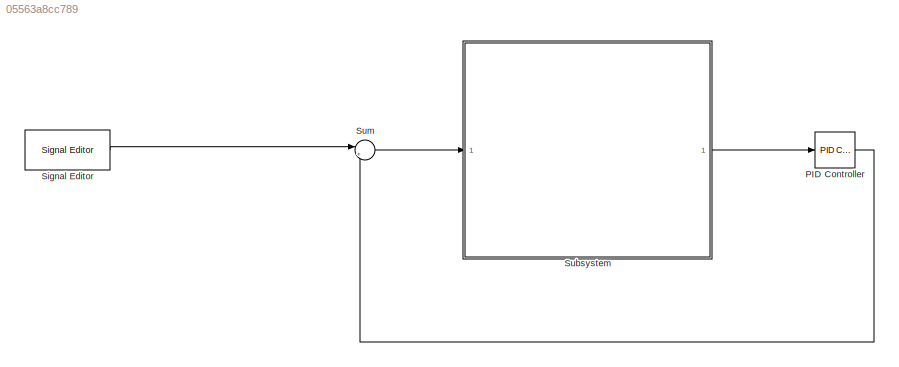
MODEL slx_05563a8cc789
KIND model
CONFIG AbsTol = auto
CONFIG EnableMultiTasking = off
CONFIG FixedStep = auto
CONFIG MaxStep = auto
CONFIG MinStep = auto
CONFIG RelTol = 1e-3
CONFIG SampleTimeConstraint = Unconstrained
CONFIG SolverName = VariableStepAuto
CONFIG StartTime = 0.0
CONFIG StopTime = 100
BLOCK [Reference] PID Controller  REF=slpidlib/PID Controller
  LibrarySourceBlock = simulink/Continuous/PID Controller
  SourceBlock = slpidlib/PID Controller
  SourceType = PID 1dof
BLOCK [Reference] Signal Editor  REF=SignalEditorBlockLib/Signal Editor
  LibrarySourceBlock = simulink/Sources/Signal Editor
  SourceBlock = SignalEditorBlockLib/Signal Editor
  SourceType = SignalEditor
  UserDataPersistent = on
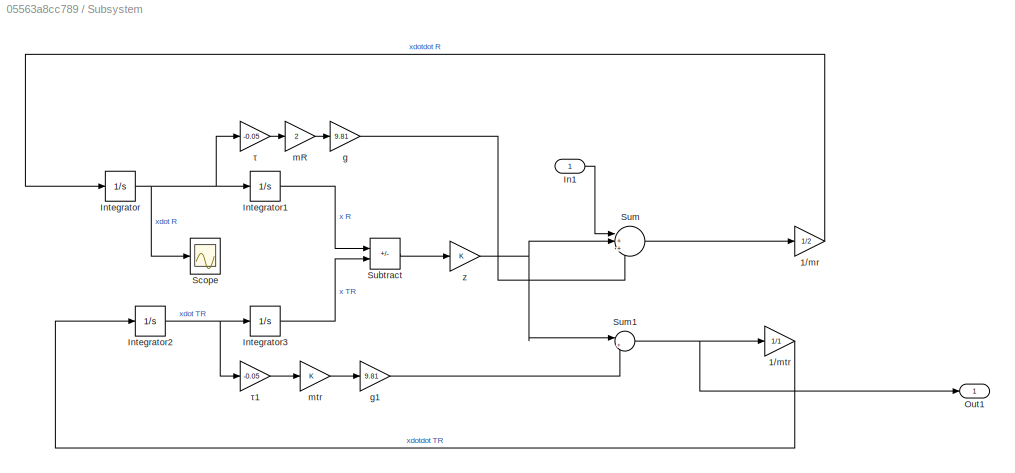
BLOCK [SubSystem] Subsystem
BLOCK [Gain] Subsystem/1//mr
  Gain = 1/2
BLOCK [Gain] Subsystem/1//mtr
  Gain = 1/1
BLOCK [Inport] Subsystem/In1
BLOCK [Integrator] Subsystem/Integrator
BLOCK [Integrator] Subsystem/Integrator1
BLOCK [Integrator] Subsystem/Integrator2
BLOCK [Integrator] Subsystem/Integrator3
BLOCK [Outport] Subsystem/Out1
BLOCK [Scope] Subsystem/Scope
  Floating = off
  NumInputPorts = 1
  ScopeSpecificationString = Simulink.scopes.TimeScopeBlockCfg('CurrentConfiguration', extmgr.ConfigurationSet(extmgr.Configuration('Core','General UI',true),extmgr.Configuration('Core','Source UI',true),extmgr.Configuration('Sources','WiredSimulink',true),extmgr.Configuration('Visuals','Time Domain',true,'SerializedDisplays',{struct('MinYLimReal','-0.00000000033','MaxYLimReal','0.00000000006','YLabelReal','','MinYLimMag','0....<+1632ch>
BLOCK [Sum] Subsystem/Subtract
  IconShape = rectangular
  Inputs = +-
BLOCK [Sum] Subsystem/Sum
  Inputs = |++-
BLOCK [Sum] Subsystem/Sum1
  Inputs = |+-
BLOCK [Gain] Subsystem/g
  Gain = 9.81
BLOCK [Gain] Subsystem/g1
  Gain = 9.81
BLOCK [Gain] Subsystem/mR
  Gain = 2
BLOCK [Gain] Subsystem/mtr
BLOCK [Gain] Subsystem/z
BLOCK [Gain] Subsystem/τ
  Gain = -0.05
BLOCK [Gain] Subsystem/τ1
  Gain = -0.05
BLOCK [Sum] Sum
  Inputs = |+-
LINE PID Controller:1 -> Sum:2
LINE Signal Editor:1 -> Sum:1
LINE Subsystem/1//mr:1 -> Subsystem/Integrator:1
LINE Subsystem/1//mtr:1 -> Subsystem/Integrator2:1
LINE Subsystem/In1:1 -> Subsystem/Sum:1
LINE Subsystem/Integrator1:1 -> Subsystem/Subtract:1
NET Subsystem/Integrator2:1 -> Subsystem/Integrator3:1, Subsystem/τ1:1
LINE Subsystem/Integrator3:1 -> Subsystem/Subtract:2
NET Subsystem/Integrator:1 -> Subsystem/Integrator1:1, Subsystem/Scope:1, Subsystem/τ:1
LINE Subsystem/Subtract:1 -> Subsystem/z:1
NET Subsystem/Sum1:1 -> Subsystem/1//mtr:1, Subsystem/Out1:1
LINE Subsystem/Sum:1 -> Subsystem/1//mr:1
LINE Subsystem/g1:1 -> Subsystem/Sum1:2
LINE Subsystem/g:1 -> Subsystem/Sum:3
LINE Subsystem/mR:1 -> Subsystem/g:1
LINE Subsystem/mtr:1 -> Subsystem/g1:1
NET Subsystem/z:1 -> Subsystem/Sum1:1, Subsystem/Sum:2
LINE Subsystem/τ1:1 -> Subsystem/mtr:1
LINE Subsystem/τ:1 -> Subsystem/mR:1
LINE Subsystem:1 -> PID Controller:1
LINE Sum:1 -> Subsystem:1
note: NET lines group one-source signal fan-out (src -> all destinations, sorted); 1:1 wires keep LINE
